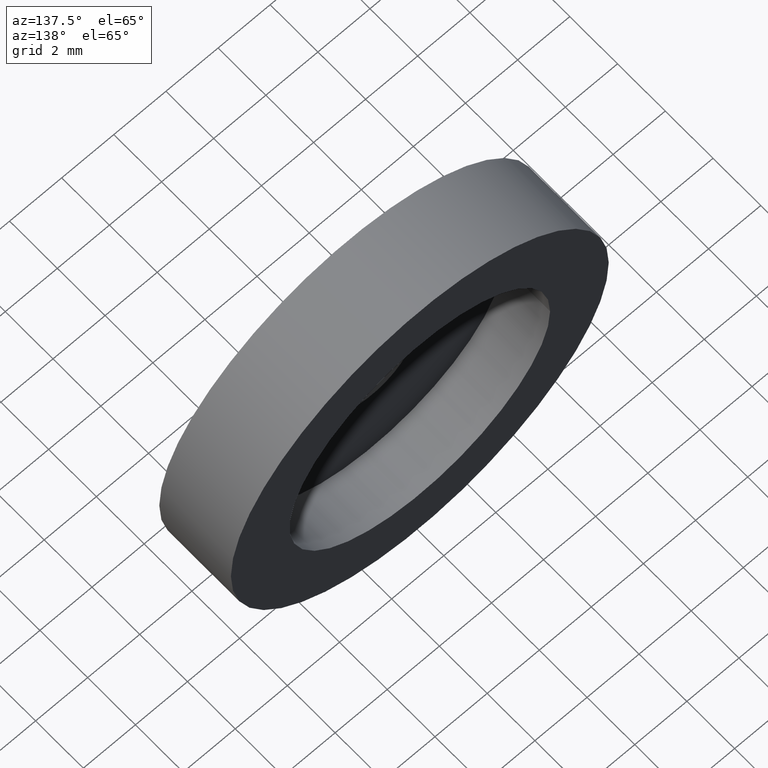
[diagram: clean part render]
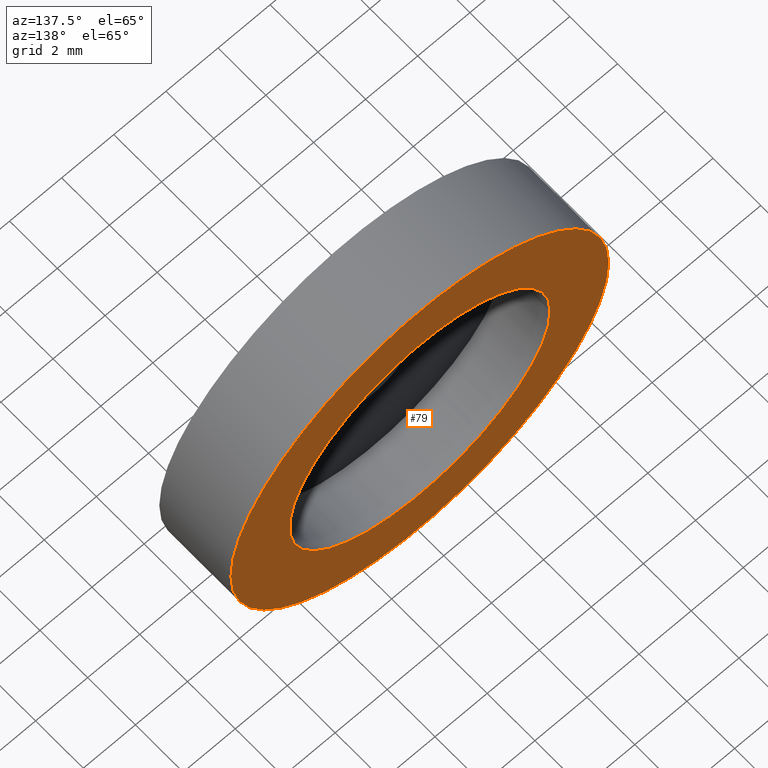
[diagram: same view with one face highlighted and labeled with its STEP entity id]
A machine part, auxiliary view. The second image highlights one B-rep face of the part: STEP entity #79.
In plain terms, the highlighted planar face has unit normal (0, 1, 0).
Its self-contained STEP definition (entity closure, byte-faithful):
#22=FACE_BOUND('',#39,.T.);
#28=FACE_OUTER_BOUND('',#38,.T.);
#38=EDGE_LOOP('',(#68));
#39=EDGE_LOOP('',(#69));
#44=CIRCLE('',#87,5.);
#46=CIRCLE('',#91,7.25);
#50=VERTEX_POINT('',#128);
#52=VERTEX_POINT('',#134);
#56=EDGE_CURVE('',#50,#50,#44,.T.);
#58=EDGE_CURVE('',#52,#52,#46,.T.);
#68=ORIENTED_EDGE('',*,*,#58,.T.);
#69=ORIENTED_EDGE('',*,*,#56,.T.);
#73=PLANE('',#93);
#79=ADVANCED_FACE('',(#28,#22),#73,.T.);
#87=AXIS2_PLACEMENT_3D('',#129,#105,#106);
#91=AXIS2_PLACEMENT_3D('',#135,#113,#114);
#93=AXIS2_PLACEMENT_3D('',#138,#117,#118);
#105=DIRECTION('center_axis',(0.,-1.,0.));
#106=DIRECTION('ref_axis',(-1.,0.,0.));
#113=DIRECTION('center_axis',(0.,1.,0.));
#114=DIRECTION('ref_axis',(1.,0.,0.));
#117=DIRECTION('center_axis',(0.,1.,0.));
#118=DIRECTION('ref_axis',(0.,0.,1.));
#128=CARTESIAN_POINT('',(-5.,3.,0.));
#129=CARTESIAN_POINT('Origin',(0.,3.,0.));
#134=CARTESIAN_POINT('',(-7.25,3.,8.87868929381831E-16));
#135=CARTESIAN_POINT('Origin',(0.,3.,0.));
#138=CARTESIAN_POINT('Origin',(3.29212761270361E-16,3.,1.27611841910938E-16));